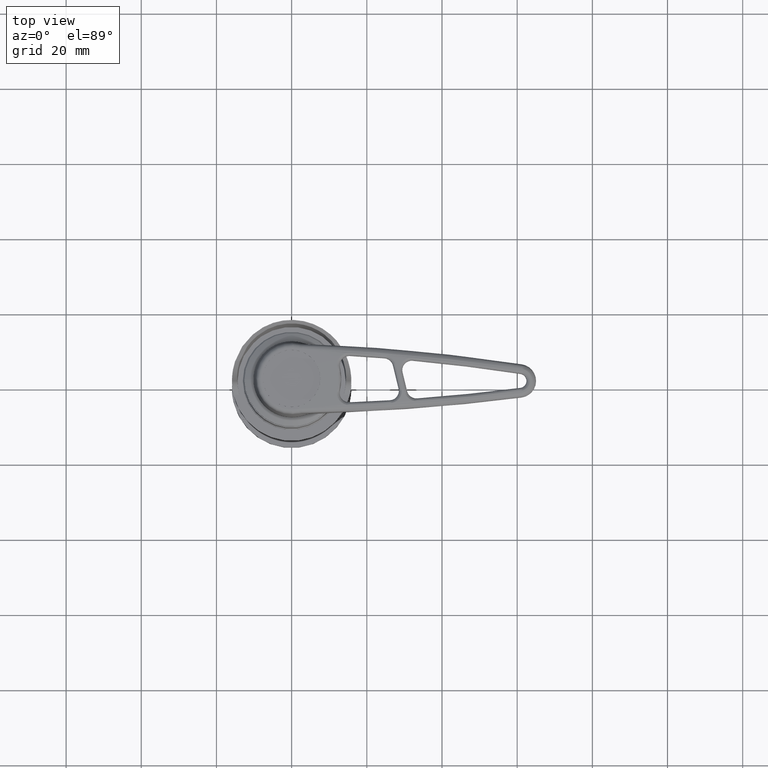
[diagram: clean part render]
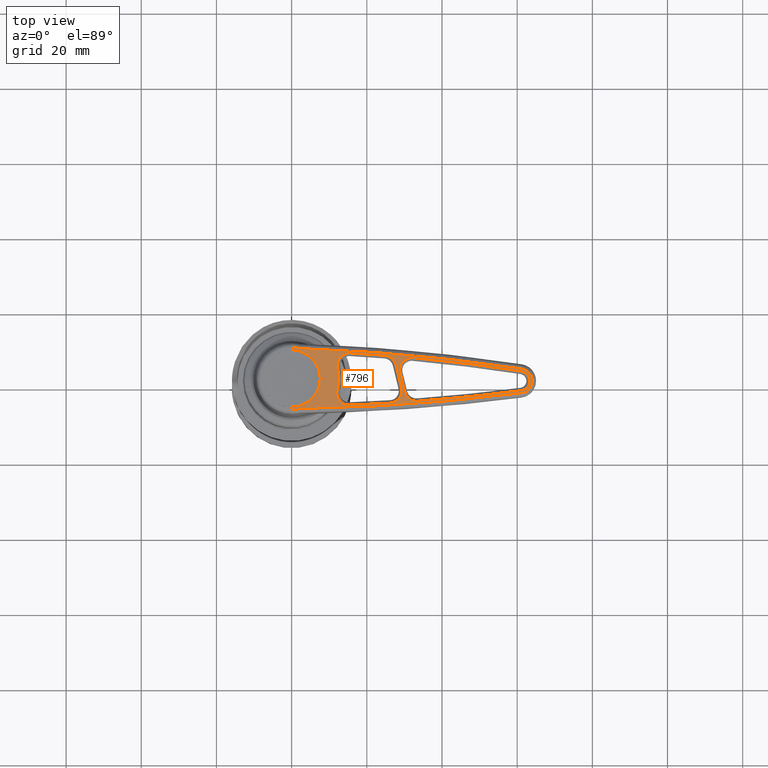
[diagram: same view with one face highlighted and labeled with its STEP entity id]
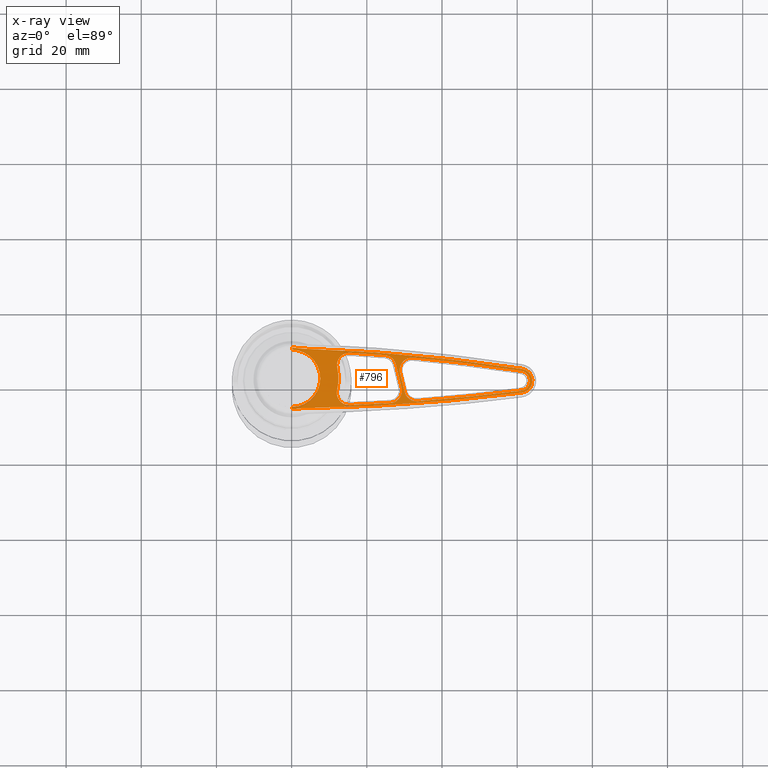
[diagram: x-ray of the same camera — body ghosted, the highlighted face saturated]
A machine part, top view. The second image highlights one B-rep face of the part: STEP entity #796.
The next image is the same camera in x-ray: the body ghosted, the highlighted face saturated — about 0% of this face is hidden behind the body in this view.
In plain terms, the highlighted cylindrical surface (partial cylindrical patch) has radius 309.995 mm, axis along (0.0085, 1, -0).
Its self-contained STEP definition (entity closure, byte-faithful):
#16 = CARTESIAN_POINT ( 'NONE',  ( -18.28515521259127400, -8.076133682068841000, 1.507140635750377600 ) ) ;
#20 = EDGE_CURVE ( 'NONE', #2311, #3320, #4143, .T. ) ;
#58 = CARTESIAN_POINT ( 'NONE',  ( -18.20095931724259900, 1.225874089185394800, 7.524768199164421700 ) ) ;
#83 = CARTESIAN_POINT ( 'NONE',  ( -16.61967341125467000, 5.853038840717557500, 32.29704541549643400 ) ) ;
#84 = CARTESIAN_POINT ( 'NONE',  ( -18.27897328382049100, 7.184163068733592000, 2.587907220544714900 ) ) ;
#132 = CARTESIAN_POINT ( 'NONE',  ( -16.88171978470617100, 4.902800976362597000, 29.67369445325931900 ) ) ;
#165 = CARTESIAN_POINT ( 'NONE',  ( -16.92378322428905000, 0.08652769979028701600, 29.23280366859213300 ) ) ;
#286 = CARTESIAN_POINT ( 'NONE',  ( -16.48485070446753700, -5.746429647507145700, 33.56597091489539500 ) ) ;
#301 = CARTESIAN_POINT ( 'NONE',  ( -11.83524093713531200, -2.234839864738626500, 63.09989055405958400 ) ) ;
#321 = CARTESIAN_POINT ( 'NONE',  ( -16.91048851891765300, -3.413898283259719300, 29.37067056616021400 ) ) ;
#326 = CARTESIAN_POINT ( 'NONE',  ( -15.60931675970215300, 5.050377341579849900, 41.99629708386260100 ) ) ;
#332 = CARTESIAN_POINT ( 'NONE',  ( -11.86852832243962100, 1.507692281910236500, 62.93901814930623600 ) ) ;
#335 = CARTESIAN_POINT ( 'NONE',  ( -11.70161997458381200, 1.303054342469933000, 63.74100581687158500 ) ) ;
#362 = CARTESIAN_POINT ( 'NONE',  ( -11.86907234923922300, -1.511412442427699600, 62.93638621559999500 ) ) ;
#368 = CARTESIAN_POINT ( 'NONE',  ( -18.04290528401431000, -5.365570865604512500, 12.50423286664262300 ) ) ;
#449 = CARTESIAN_POINT ( 'NONE',  ( -18.28800000000002500, 8.212120155783532400, 0.1790844486832411400 ) ) ;
#456 = CARTESIAN_POINT ( 'NONE',  ( -18.28799999999997200, -7.617895297274672300, 0.1790844486832307300 ) ) ;
#461 = CARTESIAN_POINT ( 'NONE',  ( -18.28703610212464500, 8.157105036513151200, 1.068106858965420100 ) ) ;
#508 = CARTESIAN_POINT ( 'NONE',  ( -18.23731035884253200, -4.971844670628140500, 5.795291106830780400 ) ) ;
#517 = CARTESIAN_POINT ( 'NONE',  ( -18.04292101978183600, 5.365331146673015400, 12.50384656829147900 ) ) ;
#583 = CARTESIAN_POINT ( 'NONE',  ( -16.96696804822989400, -0.1686345556389762000, 28.77190190693172100 ) ) ;
#591 = CARTESIAN_POINT ( 'NONE',  ( -16.56813341197537800, -5.744679115560906300, 32.79023061340215900 ) ) ;
#620 = CARTESIAN_POINT ( 'NONE',  ( -17.31219409829073900, 6.420675440920839500, 24.75627401406998000 ) ) ;
#622 = CARTESIAN_POINT ( 'NONE',  ( -16.84323153426714400, -3.258997604018125700, 30.07315491832459400 ) ) ;
#640 = CARTESIAN_POINT ( 'NONE',  ( -17.13336301150420500, 5.429466360082772200, 26.91003820065000000 ) ) ;
#661 = CARTESIAN_POINT ( 'NONE',  ( -18.28515521259127400, -8.076133682068841000, 1.507140635750377600 ) ) ;
#687 = CARTESIAN_POINT ( 'NONE',  ( -18.28101459789298400, -7.953909350043175200, 2.298502755616732300 ) ) ;
#691 = ORIENTED_EDGE ( 'NONE', *, *, #5489, .T. ) ;
#702 = CARTESIAN_POINT ( 'NONE',  ( -18.20756858910579000, 2.418323190711528800, 7.242682172051083900 ) ) ;
#728 = CARTESIAN_POINT ( 'NONE',  ( -18.28679340156616100, 7.545960884337418400, 1.167047313017961700 ) ) ;
#739 = CARTESIAN_POINT ( 'NONE',  ( -16.96277161634235500, 1.759774611556556900, 28.81250640412016800 ) ) ;
#754 = ORIENTED_EDGE ( 'NONE', *, *, #2763, .T. ) ;
#759 = CARTESIAN_POINT ( 'NONE',  ( -18.05740705325897700, -2.896386151223495600, 12.13367671611862700 ) ) ;
#766 = ORIENTED_EDGE ( 'NONE', *, *, #1120, .F. ) ;
#770 = CARTESIAN_POINT ( 'NONE',  ( -16.82225317086357200, 5.387142297016995800, 30.28963985881047800 ) ) ;
#777 = CARTESIAN_POINT ( 'NONE',  ( -12.24278141927073800, 2.640946999727879600, 61.10062222209249700 ) ) ;
#796 = ADVANCED_FACE ( 'NONE', ( #5006, #1557, #8254 ), #1353, .T. ) ;
#945 = EDGE_CURVE ( 'NONE', #6867, #6654, #7845, .T. ) ;
#950 = CARTESIAN_POINT ( 'NONE',  ( -14.14768577489456400, 3.975906749734569300, 51.59666329770608000 ) ) ;
#955 = CARTESIAN_POINT ( 'NONE',  ( -11.75963611506954400, -1.795870020088554000, 63.46347835581816800 ) ) ;
#973 = CARTESIAN_POINT ( 'NONE',  ( -16.92586363081843700, -4.114014605551374400, 29.20778954700795200 ) ) ;
#983 = CARTESIAN_POINT ( 'NONE',  ( -11.82001518953323000, 1.089958517052397100, 63.17319531975049100 ) ) ;
#985 = CARTESIAN_POINT ( 'NONE',  ( -11.76029038086507100, 1.800292812780029100, 63.46034035060821300 ) ) ;
#1011 = CARTESIAN_POINT ( 'NONE',  ( -11.93202447021671400, -1.879812124312816500, 62.63113032271103000 ) ) ;
#1018 = CARTESIAN_POINT ( 'NONE',  ( -18.05527783258965300, -4.668192781302654900, 12.18886519692534900 ) ) ;
#1081 = CARTESIAN_POINT ( 'NONE',  ( -17.18468284625282300, -6.312930147660388500, 26.31007959749248200 ) ) ;
#1108 = ORIENTED_EDGE ( 'NONE', *, *, #3354, .T. ) ;
#1120 = EDGE_CURVE ( 'NONE', #3387, #8310, #7240, .T. ) ;
#1157 = EDGE_CURVE ( 'NONE', #1171, #2199, #7087, .T. ) ;
#1166 = CARTESIAN_POINT ( 'NONE',  ( -18.22343372197704500, -3.972647688260947600, 6.507162632148974200 ) ) ;
#1171 = VERTEX_POINT ( 'NONE', #5715 ) ;
#1173 = CARTESIAN_POINT ( 'NONE',  ( -18.02406356514908800, 5.970324735193215400, 12.96951519881160800 ) ) ;
#1248 = CARTESIAN_POINT ( 'NONE',  ( -16.64607348243209000, -5.523671426500265500, 32.04307449585411400 ) ) ;
#1287 = CARTESIAN_POINT ( 'NONE',  ( -17.10455076891845400, 5.031688879649185400, 27.24078068697626200 ) ) ;
#1311 = CARTESIAN_POINT ( 'NONE',  ( 291.7072782777348700, -12.69999999999991800, 0.1790844486832534900 ) ) ;
#1348 = B_SPLINE_CURVE_WITH_KNOTS ( 'NONE', 3,
 ( #3219, #2587, #1962, #6513 ),
 .UNSPECIFIED., .F., .F.,
 ( 4, 4 ),
 ( 8.673617379884035500E-019, 0.001200019965173039000 ),
 .UNSPECIFIED. ) ;
#1353 = CYLINDRICAL_SURFACE ( 'NONE', #3998, 309.9952782777334600 ) ;
#1357 = CARTESIAN_POINT ( 'NONE',  ( -18.22076366366982500, 3.768856793472471700, 6.640780979361458900 ) ) ;
#1370 = EDGE_CURVE ( 'NONE', #4694, #1396, #1405, .T. ) ;
#1385 = CARTESIAN_POINT ( 'NONE',  ( -18.28800000000002500, 7.617895297274646500, 0.1790844486832302000 ) ) ;
#1396 = VERTEX_POINT ( 'NONE', #2330 ) ;
#1405 = B_SPLINE_CURVE_WITH_KNOTS ( 'NONE', 3,
 ( #3477, #2861, #6774, #3502, #8071, #4167, #301, #4829, #955, #5480, #1602, #6143, #2245, #6804, #2893, #7453, #3531, #8094, #4197, #335, #4854, #985, #5508, #1630, #6164, #2273, #6841, #2914, #7479, #3562 ),
 .UNSPECIFIED., .F., .F.,
 ( 4, 2, 2, 2, 2, 2, 2, 2, 2, 2, 2, 2, 2, 2, 4 ),
 ( 1.462347196467345600E-017, 0.001154780273848703300, 0.001732170410773038300, 0.002309560547697374000, 0.002886950684621709300, 0.003464340821546044900, 0.004041730958470380600, 0.004619121095394716800, 0.005196511232319052000, 0.005773901369243386400, 0.006351291506167722500, 0.006928681643092056900, 0.007506071780016392200, 0.008083461916940726600, 0.009238242190789431800 ),
 .UNSPECIFIED. ) ;
#1408 = CARTESIAN_POINT ( 'NONE',  ( -17.72977090951373900, -6.784171192709018200, 19.12128122806675600 ) ) ;
#1416 = CARTESIAN_POINT ( 'NONE',  ( -18.27775077696330900, -7.944185718990716800, 2.699861401964886100 ) ) ;
#1428 = B_SPLINE_CURVE_WITH_KNOTS ( 'NONE', 3,
 ( #4248, #5559, #1684, #6224, #2325, #6894 ),
 .UNSPECIFIED., .F., .F.,
 ( 4, 2, 4 ),
 ( 7.204847710556567800E-018, 0.02954053794392106100, 0.05908107588784213000 ),
 .UNSPECIFIED. ) ;
#1430 = CARTESIAN_POINT ( 'NONE',  ( -16.75174931514873900, 5.714533290631339700, 31.00374258021690500 ) ) ;
#1557 = FACE_BOUND ( 'NONE', #2966, .T. ) ;
#1584 = B_SPLINE_CURVE_WITH_KNOTS ( 'NONE', 3,
 ( #2614, #6519, #7820, #3916, #58, #4564, #702, #5234, #1357, #5874, #1991, #6549, #2644, #7204, #3287, #7851, #3943, #84, #4594, #728, #5256, #1385 ),
 .UNSPECIFIED., .F., .F.,
 ( 4, 2, 2, 2, 2, 2, 2, 2, 2, 2, 4 ),
 ( 0.01173596774007686100, 0.01246908148557357100, 0.01320219523107028100, 0.01466842272206370100, 0.01613465021305712100, 0.01760087770405054100, 0.01833399144954724800, 0.01906710519504396100, 0.02053333268603737400, 0.02199956017703079400, 0.02346578766802421100 ),
 .UNSPECIFIED. ) ;
#1602 = CARTESIAN_POINT ( 'NONE',  ( -11.70120149634742300, -1.298471130067160100, 63.74300272144732600 ) ) ;
#1616 = CARTESIAN_POINT ( 'NONE',  ( -16.95522940841258100, -4.767095845684306900, 28.89404464652626800 ) ) ;
#1627 = CARTESIAN_POINT ( 'NONE',  ( -11.78746162182742000, 0.6336100363493550900, 63.32982684702158600 ) ) ;
#1629 = VERTEX_POINT ( 'NONE', #8245 ) ;
#1630 = CARTESIAN_POINT ( 'NONE',  ( -11.83601927782849800, 2.238761673563200500, 63.09613825749949000 ) ) ;
#1653 = CARTESIAN_POINT ( 'NONE',  ( -12.00654904943973700, -2.185882289108201300, 62.26772729646159400 ) ) ;
#1659 = CARTESIAN_POINT ( 'NONE',  ( -18.06091308508516100, -3.916353478161233700, 12.04248085943133600 ) ) ;
#1684 = CARTESIAN_POINT ( 'NONE',  ( -15.61632684208794700, 5.572573470396512200, 41.95934634179304400 ) ) ;
#1699 = CARTESIAN_POINT ( 'NONE',  ( -18.19720890475398200, -7.704233997828117400, 12.60425796685177600 ) ) ;
#1719 = EDGE_LOOP ( 'NONE', ( #7466, #2317, #2960, #7795, #7624, #1770 ) ) ;
#1763 = CARTESIAN_POINT ( 'NONE',  ( -18.28799999999997200, -12.69999999999993200, 0.1790844486832370300 ) ) ;
#1770 = ORIENTED_EDGE ( 'NONE', *, *, #5965, .T. ) ;
#1782 = CARTESIAN_POINT ( 'NONE',  ( -18.28681105829502600, -7.546811345308820600, 1.161593195315913300 ) ) ;
#1799 = CARTESIAN_POINT ( 'NONE',  ( -18.21597436829112500, -3.322070853133507000, 6.862130706311045700 ) ) ;
#1805 = CARTESIAN_POINT ( 'NONE',  ( -17.99895600115706900, 6.454779443805391800, 13.56423920814075100 ) ) ;
#1887 = CARTESIAN_POINT ( 'NONE',  ( -16.69919768311421000, -5.260175034794362300, 31.52463888513391100 ) ) ;
#1900 = CARTESIAN_POINT ( 'NONE',  ( -17.28449458418144100, 6.397060553073992600, 25.10455180280387200 ) ) ;
#1930 = CARTESIAN_POINT ( 'NONE',  ( -17.08105429813087300, 4.582982909215931300, 27.50751171973044500 ) ) ;
#1960 = VERTEX_POINT ( 'NONE', #7757 ) ;
#1962 = CARTESIAN_POINT ( 'NONE',  ( -18.28346555326175600, 8.003394692338492400, 1.901537809915550000 ) ) ;
#1991 = CARTESIAN_POINT ( 'NONE',  ( -18.23726905505470300, 4.969317150119543700, 5.797678225820030600 ) ) ;
#2037 = CARTESIAN_POINT ( 'NONE',  ( -16.97176566857033100, 2.275246567169329800, 28.71538391239667100 ) ) ;
#2063 = CARTESIAN_POINT ( 'NONE',  ( -16.67399690112728500, 5.865213718706835200, 31.77227303675286100 ) ) ;
#2081 = B_SPLINE_CURVE_WITH_KNOTS ( 'NONE', 3,
 ( #16, #6504, #687, #5224 ),
 .UNSPECIFIED., .F., .F.,
 ( 4, 4 ),
 ( 0.0000000000000000000, 0.001200019965161729900 ),
 .UNSPECIFIED. ) ;
#2183 = CARTESIAN_POINT ( 'NONE',  ( -14.06435458857280300, -3.917508132853276100, 52.01241969491522400 ) ) ;
#2199 = VERTEX_POINT ( 'NONE', #5021 ) ;
#2221 = ORIENTED_EDGE ( 'NONE', *, *, #4113, .F. ) ;
#2238 = CARTESIAN_POINT ( 'NONE',  ( -12.24278141927073800, 2.640946999727879600, 61.10062222209249700 ) ) ;
#2245 = CARTESIAN_POINT ( 'NONE',  ( -11.66195215498332000, -0.7548945513325497900, 63.93003585791666400 ) ) ;
#2258 = CARTESIAN_POINT ( 'NONE',  ( -16.99646153479975700, -5.334706195078757300, 28.44755117529717100 ) ) ;
#2270 = CARTESIAN_POINT ( 'NONE',  ( -11.77253573334553800, 0.1589897697783475300, 63.40150960227428100 ) ) ;
#2273 = CARTESIAN_POINT ( 'NONE',  ( -11.92552313364990500, 2.602844002231119400, 62.66281926390571000 ) ) ;
#2277 = CARTESIAN_POINT ( 'NONE',  ( -17.95688293153312600, -6.866821713674514900, 14.50537608728367400 ) ) ;
#2296 = CARTESIAN_POINT ( 'NONE',  ( -12.11911720982825900, -2.498821830866415200, 61.71505709053320700 ) ) ;
#2300 = CARTESIAN_POINT ( 'NONE',  ( -18.05972910118566000, -3.147217815018728400, 12.07350833653204700 ) ) ;
#2311 = VERTEX_POINT ( 'NONE', #83 ) ;
#2317 = ORIENTED_EDGE ( 'NONE', *, *, #6426, .T. ) ;
#2325 = CARTESIAN_POINT ( 'NONE',  ( -18.19720890475348800, 7.704233997827575600, 12.60425796686212900 ) ) ;
#2330 = CARTESIAN_POINT ( 'NONE',  ( -12.20838323817621800, 3.143984523485554100, 61.27199107323612300 ) ) ;
#2413 = ORIENTED_EDGE ( 'NONE', *, *, #945, .F. ) ;
#2419 = CARTESIAN_POINT ( 'NONE',  ( -18.28204532058655500, -7.324820452176492600, 2.114726941163384200 ) ) ;
#2421 = ORIENTED_EDGE ( 'NONE', *, *, #5164, .T. ) ;
#2424 = CARTESIAN_POINT ( 'NONE',  ( -18.05972905563968200, 3.147212895056619600, 12.07350951671072500 ) ) ;
#2444 = CARTESIAN_POINT ( 'NONE',  ( -18.20758545830873800, -2.420333787263962800, 7.241932094562076600 ) ) ;
#2447 = B_SPLINE_CURVE_WITH_KNOTS ( 'NONE', 3,
 ( #3535, #7457, #6167, #2277, #6845, #2918, #7483, #3567, #8130, #4223, #368, #4895, #1018, #5538, #1659, #6199, #2300, #6875 ),
 .UNSPECIFIED., .F., .F.,
 ( 4, 2, 2, 2, 2, 2, 2, 2, 4 ),
 ( 0.0000000000000000000, 0.0007628738370518085800, 0.001525747674103617200, 0.002288621511155425500, 0.003051495348207234300, 0.003814369185259043100, 0.004577243022310851000, 0.005340116859362659800, 0.006102990696414468600 ),
 .UNSPECIFIED. ) ;
#2452 = CARTESIAN_POINT ( 'NONE',  ( -17.96831007288730200, 6.790676773092707600, 14.25593258721228000 ) ) ;
#2530 = CARTESIAN_POINT ( 'NONE',  ( -16.74620200027478800, -4.908405185037016900, 31.05855495707276500 ) ) ;
#2555 = B_SPLINE_CURVE_WITH_KNOTS ( 'NONE', 3,
 ( #456, #5018, #1782, #6324, #2419, #6992, #3059, #7633, #3713, #8275, #4368, #508, #5043, #1166, #5679, #1799, #6347, #2444, #7013, #3088, #7660, #3746 ),
 .UNSPECIFIED., .F., .F.,
 ( 4, 2, 2, 2, 2, 2, 2, 2, 2, 2, 4 ),
 ( 4.182618160448392700E-017, 0.001466995967509644900, 0.002200493951264446500, 0.002933991935019248600, 0.004400987902528850600, 0.005867983870038453000, 0.007334979837548055400, 0.008068477821302858300, 0.008801975805057659500, 0.01026897177256726000, 0.01173596774007686100 ),
 .UNSPECIFIED. ) ;
#2563 = VERTEX_POINT ( 'NONE', #3788 ) ;
#2582 = CARTESIAN_POINT ( 'NONE',  ( -17.06395183221973600, 4.098641815289201200, 27.70001910658951200 ) ) ;
#2587 = CARTESIAN_POINT ( 'NONE',  ( -18.28101459789292000, 7.953909350041454800, 2.298502755625279700 ) ) ;
#2614 = CARTESIAN_POINT ( 'NONE',  ( -18.19868379826076000, 7.402340477534241900E-016, 7.619999999999999200 ) ) ;
#2644 = CARTESIAN_POINT ( 'NONE',  ( -18.24900889780440500, 5.667680015221137100, 5.099242206465088000 ) ) ;
#2665 = CARTESIAN_POINT ( 'NONE',  ( -17.48848063669193600, -6.567476398876164200, 22.71891535979420600 ) ) ;
#2666 = CARTESIAN_POINT ( 'NONE',  ( -17.90831636002637600, -6.962749416591106100, 15.51714532989485700 ) ) ;
#2667 = ORIENTED_EDGE ( 'NONE', *, *, #4331, .T. ) ;
#2680 = CARTESIAN_POINT ( 'NONE',  ( -16.96939004743170500, 3.063293954198493800, 28.74113247951644800 ) ) ;
#2697 = CARTESIAN_POINT ( 'NONE',  ( -18.04510092396457900, -0.9629723678981418900, 12.44853505418521400 ) ) ;
#2712 = CARTESIAN_POINT ( 'NONE',  ( -16.61967341125467000, 5.853038840717557500, 32.29704541549643400 ) ) ;
#2763 = EDGE_CURVE ( 'NONE', #1629, #4958, #5718, .T. ) ;
#2817 = EDGE_CURVE ( 'NONE', #2563, #6654, #8121, .T. ) ;
#2861 = CARTESIAN_POINT ( 'NONE',  ( -12.13296621912366300, -3.091372955852842900, 61.64716414162159500 ) ) ;
#2893 = CARTESIAN_POINT ( 'NONE',  ( -11.64394607824464600, -0.1894275247604181600, 64.01565105618946900 ) ) ;
#2903 = CARTESIAN_POINT ( 'NONE',  ( -17.04680568187580300, -5.789737341463443000, 27.89249270093732800 ) ) ;
#2912 = CARTESIAN_POINT ( 'NONE',  ( -11.77569903140100200, -0.3249098251664114300, 63.38633019193027000 ) ) ;
#2914 = CARTESIAN_POINT ( 'NONE',  ( -12.06050107909231700, 2.975005474134238400, 62.00404128900351700 ) ) ;
#2918 = CARTESIAN_POINT ( 'NONE',  ( -17.98910888851573400, -6.586949695495524000, 13.79065035826972100 ) ) ;
#2941 = CARTESIAN_POINT ( 'NONE',  ( -12.24278141927073800, -2.640946999727889800, 61.10062222209254700 ) ) ;
#2960 = ORIENTED_EDGE ( 'NONE', *, *, #20, .T. ) ;
#2966 = EDGE_LOOP ( 'NONE', ( #7764, #6890, #6650, #2421, #5315, #754, #2667, #691 ) ) ;
#2986 = CARTESIAN_POINT ( 'NONE',  ( -17.64367136291120600, -7.178057265416965600, 22.43618453229931100 ) ) ;
#2996 = EDGE_CURVE ( 'NONE', #7601, #4694, #5111, .T. ) ;
#3059 = CARTESIAN_POINT ( 'NONE',  ( -18.27686494279066000, -7.084768227658416100, 2.816218618488950800 ) ) ;
#3067 = CARTESIAN_POINT ( 'NONE',  ( -18.05740705325897700, 2.896386151223433000, 12.13367671611864500 ) ) ;
#3088 = CARTESIAN_POINT ( 'NONE',  ( -18.19981528330639600, -0.9770467873557091600, 7.573337725318032700 ) ) ;
#3091 = CARTESIAN_POINT ( 'NONE',  ( -17.93354767446427500, 6.957993059746418600, 15.00118579725622100 ) ) ;
#3134 = EDGE_CURVE ( 'NONE', #2199, #4403, #5978, .T. ) ;
#3175 = VERTEX_POINT ( 'NONE', #5759 ) ;
#3176 = CARTESIAN_POINT ( 'NONE',  ( -16.78567310867095600, -4.480767743240766000, 30.66160089194536900 ) ) ;
#3190 = CARTESIAN_POINT ( 'NONE',  ( -17.21710077254422400, 6.126808972511130800, 25.92450801753187100 ) ) ;
#3213 = VERTEX_POINT ( 'NONE', #4560 ) ;
#3219 = CARTESIAN_POINT ( 'NONE',  ( -18.27775077696319900, 7.944185718990325100, 2.699861401977336200 ) ) ;
#3287 = CARTESIAN_POINT ( 'NONE',  ( -18.25755037872450600, 6.133203307968584800, 4.528569534402914000 ) ) ;
#3302 = EDGE_CURVE ( 'NONE', #3320, #1960, #5346, .T. ) ;
#3320 = VERTEX_POINT ( 'NONE', #3591 ) ;
#3328 = CARTESIAN_POINT ( 'NONE',  ( -16.94989381210584900, 3.819483514018126700, 28.95123974130093100 ) ) ;
#3346 = CARTESIAN_POINT ( 'NONE',  ( -18.04402858499165100, 0.9796790828707293600, 12.47544374452517800 ) ) ;
#3354 = EDGE_CURVE ( 'NONE', #1396, #6068, #1428, .T. ) ;
#3364 = CARTESIAN_POINT ( 'NONE',  ( -16.84323153426714400, -3.258997604018125700, 30.07315491832459400 ) ) ;
#3377 = DIRECTION ( 'NONE',  ( -2.619264724366652800E-032, 1.000000000000000000, -9.714451465470162900E-017 ) ) ;
#3387 = VERTEX_POINT ( 'NONE', #6546 ) ;
#3420 =( BOUNDED_CURVE ( )  B_SPLINE_CURVE ( 3, ( #3364, #7283, #165, #4674 ),
 .UNSPECIFIED., .F., .F. ) 
 B_SPLINE_CURVE_WITH_KNOTS ( ( 4, 4 ),
 ( 4.615804932503443100, 4.619889847503088700 ),
 .UNSPECIFIED. ) 
 CURVE ( )  GEOMETRIC_REPRESENTATION_ITEM ( )  RATIONAL_B_SPLINE_CURVE ( ( 1.000000000000000000, 0.9999986094562706200, 0.9999986094562706200, 1.000000000000000000 ) ) 
 REPRESENTATION_ITEM ( '' )  );
#3475 = VERTEX_POINT ( 'NONE', #4023 ) ;
#3477 = CARTESIAN_POINT ( 'NONE',  ( -12.20838323817624600, -3.143984523485642100, 61.27199107323611600 ) ) ;
#3502 = CARTESIAN_POINT ( 'NONE',  ( -11.95760971213014700, -2.705303268219045400, 62.50674112131837700 ) ) ;
#3527 = CARTESIAN_POINT ( 'NONE',  ( -12.00508740082107200, 2.197375778710232400, 62.27539270759653800 ) ) ;
#3531 = CARTESIAN_POINT ( 'NONE',  ( -11.64776421228636700, 0.3871527277424905400, 63.99751440068994400 ) ) ;
#3535 = CARTESIAN_POINT ( 'NONE',  ( -17.90831636002637600, -6.962749416591106100, 15.51714532989485700 ) ) ;
#3550 = CARTESIAN_POINT ( 'NONE',  ( -17.14382296129694400, -6.278694445927194500, 26.79308033755092200 ) ) ;
#3558 = CARTESIAN_POINT ( 'NONE',  ( -11.79668904411347600, -0.7932499167377431400, 63.28548476169848400 ) ) ;
#3562 = CARTESIAN_POINT ( 'NONE',  ( -12.20838323817621800, 3.143984523485554100, 61.27199107323612300 ) ) ;
#3567 = CARTESIAN_POINT ( 'NONE',  ( -18.01624850471250400, -6.149751923549971800, 13.15798498276841100 ) ) ;
#3591 = CARTESIAN_POINT ( 'NONE',  ( -12.24278141927073800, 2.640946999727879600, 61.10062222209249700 ) ) ;
#3635 = CARTESIAN_POINT ( 'NONE',  ( -14.14247369902130700, -4.493222830259695900, 51.65057323087243200 ) ) ;
#3713 = CARTESIAN_POINT ( 'NONE',  ( -18.26567876584247300, -6.552180087329098500, 3.920936793727784600 ) ) ;
#3714 = CARTESIAN_POINT ( 'NONE',  ( -18.05740705325897700, -2.896386151223495600, 12.13367671611862700 ) ) ;
#3718 = CARTESIAN_POINT ( 'NONE',  ( -18.28800000000002500, 8.212120155783532400, 0.1790844486832411400 ) ) ;
#3722 = CARTESIAN_POINT ( 'NONE',  ( -18.05980285426938500, 4.168326420321129400, 12.07157681762639700 ) ) ;
#3746 = CARTESIAN_POINT ( 'NONE',  ( -18.19868379826076000, 7.402340477534241900E-016, 7.619999999999999200 ) ) ;
#3755 = ORIENTED_EDGE ( 'NONE', *, *, #6373, .T. ) ;
#3756 = CARTESIAN_POINT ( 'NONE',  ( -17.90831636002632300, 6.962749416590961400, 15.51714532989498700 ) ) ;
#3785 = ORIENTED_EDGE ( 'NONE', *, *, #5273, .F. ) ;
#3788 = CARTESIAN_POINT ( 'NONE',  ( -18.28515521259122100, 8.076133682068592300, 1.507140635751466100 ) ) ;
#3802 = CARTESIAN_POINT ( 'NONE',  ( -16.48485070446753700, -5.746429647507145700, 33.56597091489539500 ) ) ;
#3821 = CARTESIAN_POINT ( 'NONE',  ( -17.75552272964251100, 6.809927739779257500, 18.60145247240309600 ) ) ;
#3823 = CARTESIAN_POINT ( 'NONE',  ( -16.81670684789780200, -3.989374998807955200, 30.34578123095474900 ) ) ;
#3848 = CARTESIAN_POINT ( 'NONE',  ( -17.17906594104371700, 5.873166498729472300, 26.37681281334266000 ) ) ;
#3872 = CARTESIAN_POINT ( 'NONE',  ( -18.28799999999997200, -8.212120155783532400, 0.1790844486832330100 ) ) ;
#3913 = VERTEX_POINT ( 'NONE', #286 ) ;
#3916 = CARTESIAN_POINT ( 'NONE',  ( -18.20010094438472900, 0.9796352803505571400, 7.560779522031782400 ) ) ;
#3943 = CARTESIAN_POINT ( 'NONE',  ( -18.27058994325402000, 6.788939028242741500, 3.495678711081095600 ) ) ;
#3985 = CARTESIAN_POINT ( 'NONE',  ( -16.91404363238189000, 4.504471582654564300, 29.33352505308124200 ) ) ;
#3998 = AXIS2_PLACEMENT_3D ( 'NONE', #1311, #4516, #5189 ) ;
#4003 = CARTESIAN_POINT ( 'NONE',  ( -18.05740705325897700, 2.896386151223433000, 12.13367671611864500 ) ) ;
#4023 = CARTESIAN_POINT ( 'NONE',  ( -17.06014442556386300, 3.928845406807382400, 27.74266969539404900 ) ) ;
#4113 = EDGE_CURVE ( 'NONE', #8310, #3175, #2555, .T. ) ;
#4130 = CARTESIAN_POINT ( 'NONE',  ( -16.48485070446753700, -5.746429647507145700, 33.56597091489539500 ) ) ;
#4143 = B_SPLINE_CURVE_WITH_KNOTS ( 'NONE', 3,
 ( #6131, #326, #950, #2238 ),
 .UNSPECIFIED., .F., .F.,
 ( 4, 4 ),
 ( 0.0000000000000000000, 0.02931076174987480200 ),
 .UNSPECIFIED. ) ;
#4167 = CARTESIAN_POINT ( 'NONE',  ( -11.86356053793128000, -2.364864113875788700, 62.96317039694350400 ) ) ;
#4184 = CARTESIAN_POINT ( 'NONE',  ( -16.90857085328996600, -3.169547790921920500, 29.39090161967625600 ) ) ;
#4195 = CARTESIAN_POINT ( 'NONE',  ( -11.88825501680270400, 1.638196608354518300, 62.84355711843137000 ) ) ;
#4197 = CARTESIAN_POINT ( 'NONE',  ( -11.67308289704592500, 0.9450885176596143200, 63.87707374317500400 ) ) ;
#4218 = CARTESIAN_POINT ( 'NONE',  ( -11.83507836028294800, -1.239249396877900400, 63.10060152904112100 ) ) ;
#4223 = CARTESIAN_POINT ( 'NONE',  ( -18.03722946190455500, -5.583125093656194700, 12.64661277230686000 ) ) ;
#4248 = CARTESIAN_POINT ( 'NONE',  ( -12.20838323817621800, 3.143984523485554100, 61.27199107323612300 ) ) ;
#4331 = EDGE_CURVE ( 'NONE', #4958, #6099, #4963, .T. ) ;
#4368 = CARTESIAN_POINT ( 'NONE',  ( -18.24896112282494800, -5.673341763759319500, 5.110560798322394400 ) ) ;
#4372 = CARTESIAN_POINT ( 'NONE',  ( -18.05196196625559700, 4.905341649805875700, 12.27448893228945800 ) ) ;
#4393 = EDGE_CURVE ( 'NONE', #8016, #3213, #3420, .T. ) ;
#4403 = VERTEX_POINT ( 'NONE', #5361 ) ;
#4432 = ORIENTED_EDGE ( 'NONE', *, *, #6342, .T. ) ;
#4435 = CARTESIAN_POINT ( 'NONE',  ( -17.01419958416546800, 1.879873557282305500, 28.25734404338178200 ) ) ;
#4451 = EDGE_CURVE ( 'NONE', #1960, #3913, #7359, .T. ) ;
#4474 = CARTESIAN_POINT ( 'NONE',  ( -17.55676691814170500, 6.629183059082540000, 21.68115578109263100 ) ) ;
#4479 = CARTESIAN_POINT ( 'NONE',  ( -16.83858701356775000, -3.449844713161830600, 30.12109316183266500 ) ) ;
#4498 = CARTESIAN_POINT ( 'NONE',  ( -17.14422229761093100, 5.551981747311781800, 26.78436719791947600 ) ) ;
#4516 = DIRECTION ( 'NONE',  ( -2.619264724366652300E-032, 1.000000000000000000, -9.714451465470162900E-017 ) ) ;
#4519 = CARTESIAN_POINT ( 'NONE',  ( -18.28703610212469900, -8.157105036513298700, 1.068106858964687600 ) ) ;
#4560 = CARTESIAN_POINT ( 'NONE',  ( -16.96277161634235500, 1.759774611556556900, 28.81250640412016800 ) ) ;
#4561 = ORIENTED_EDGE ( 'NONE', *, *, #7946, .T. ) ;
#4564 = CARTESIAN_POINT ( 'NONE',  ( -18.20430549200205300, 1.949990329032976300, 7.382679232598896100 ) ) ;
#4594 = CARTESIAN_POINT ( 'NONE',  ( -18.28227895939397400, 7.334889795309552000, 2.122007726054871800 ) ) ;
#4608 = CARTESIAN_POINT ( 'NONE',  ( -16.96874809986326200, 2.016264609424163600, 28.74807954415695800 ) ) ;
#4632 = CARTESIAN_POINT ( 'NONE',  ( -16.86306929655823300, 5.082189850906510200, 29.86844147907359900 ) ) ;
#4674 = CARTESIAN_POINT ( 'NONE',  ( -16.96277161634235500, 1.759774611556556900, 28.81250640412016800 ) ) ;
#4688 = CARTESIAN_POINT ( 'NONE',  ( -18.28799999999997200, -12.69999999999993200, 0.1790844486832370300 ) ) ;
#4694 = VERTEX_POINT ( 'NONE', #6637 ) ;
#4829 = CARTESIAN_POINT ( 'NONE',  ( -11.78337759356891100, -1.951201745592725500, 63.34957289911444200 ) ) ;
#4843 = CARTESIAN_POINT ( 'NONE',  ( -16.91916306036260000, -3.885114944464848700, 29.27881622732606500 ) ) ;
#4853 = CARTESIAN_POINT ( 'NONE',  ( -11.83442173737794300, 1.233334173301615900, 63.10376945376215500 ) ) ;
#4854 = CARTESIAN_POINT ( 'NONE',  ( -11.71935578864574100, 1.476272420412382300, 63.65632694734365100 ) ) ;
#4883 = ORIENTED_EDGE ( 'NONE', *, *, #2996, .T. ) ;
#4888 = CARTESIAN_POINT ( 'NONE',  ( -11.88845642737396200, -1.639584873511313700, 62.84258320177749400 ) ) ;
#4895 = CARTESIAN_POINT ( 'NONE',  ( -18.05186930902451100, -4.910610052563819200, 12.27685227528075600 ) ) ;
#4958 = VERTEX_POINT ( 'NONE', #1081 ) ;
#4963 = B_SPLINE_CURVE_WITH_KNOTS ( 'NONE', 3,
 ( #7226, #2665, #1408, #5932 ),
 .UNSPECIFIED., .F., .F.,
 ( 4, 4 ),
 ( 0.0000000000000000000, 0.01083666649155601600 ),
 .UNSPECIFIED. ) ;
#4994 = CARTESIAN_POINT ( 'NONE',  ( -18.28515521259122100, 8.076133682068592300, 1.507140635751466100 ) ) ;
#5006 = FACE_BOUND ( 'NONE', #1719, .T. ) ;
#5018 = CARTESIAN_POINT ( 'NONE',  ( -18.28799999999997500, -7.606237400556767400, 0.6749881256164469400 ) ) ;
#5021 = CARTESIAN_POINT ( 'NONE',  ( -17.90831636002632300, 6.962749416590961400, 15.51714532989498700 ) ) ;
#5043 = CARTESIAN_POINT ( 'NONE',  ( -18.23153235848275200, -4.590697271484279100, 6.101858673118427700 ) ) ;
#5050 = CARTESIAN_POINT ( 'NONE',  ( -18.03737143485991000, 5.578168669874249200, 12.64308111866148300 ) ) ;
#5111 = B_SPLINE_CURVE_WITH_KNOTS ( 'NONE', 3,
 ( #6235, #1699, #2986, #7552, #3635, #8191 ),
 .UNSPECIFIED., .F., .F.,
 ( 4, 2, 4 ),
 ( 0.0000000000000000000, 0.02954053794392725100, 0.05908107588785448800 ),
 .UNSPECIFIED. ) ;
#5117 = B_SPLINE_CURVE_WITH_KNOTS ( 'NONE', 3,
 ( #3872, #7785, #4519, #661 ),
 .UNSPECIFIED., .F., .F.,
 ( 4, 4 ),
 ( 1.084202172485504400E-019, 0.001335003239642541000 ),
 .UNSPECIFIED. ) ;
#5121 = CARTESIAN_POINT ( 'NONE',  ( -16.91845011302461900, -2.216666125729505100, 29.28634006929085100 ) ) ;
#5133 = CARTESIAN_POINT ( 'NONE',  ( -16.62727027598494400, -5.590806067322752400, 32.22459366137544400 ) ) ;
#5164 = EDGE_CURVE ( 'NONE', #4403, #3475, #7616, .T. ) ;
#5166 = CARTESIAN_POINT ( 'NONE',  ( -17.11358092952691100, 5.169798349684169700, 27.13761777167446400 ) ) ;
#5189 = DIRECTION ( 'NONE',  ( 0.0000000000000000000, 9.513144605120254400E-017, 1.000000000000000000 ) ) ;
#5224 = CARTESIAN_POINT ( 'NONE',  ( -18.27775077696330900, -7.944185718990716800, 2.699861401964886100 ) ) ;
#5234 = CARTESIAN_POINT ( 'NONE',  ( -18.21577191223252300, 3.326468815790686800, 6.873087902657141000 ) ) ;
#5256 = CARTESIAN_POINT ( 'NONE',  ( -18.28799999999997500, 7.606243508393366600, 0.6747283104267547400 ) ) ;
#5273 = EDGE_CURVE ( 'NONE', #3175, #6867, #1584, .T. ) ;
#5299 = CARTESIAN_POINT ( 'NONE',  ( -16.79955445483961200, 5.516399546324446800, 30.52155319775779300 ) ) ;
#5315 = ORIENTED_EDGE ( 'NONE', *, *, #6320, .T. ) ;
#5346 = B_SPLINE_CURVE_WITH_KNOTS ( 'NONE', 3,
 ( #777, #8069, #7450, #3527, #8089, #4195, #332, #4853, #983, #5506, #1627, #6161, #2270, #6840, #2912, #7477, #3558, #8124, #4218, #362, #4888, #1011, #5531, #1653, #6192, #2296, #6866, #2941 ),
 .UNSPECIFIED., .F., .F.,
 ( 4, 2, 2, 2, 2, 2, 2, 2, 2, 2, 2, 2, 2, 4 ),
 ( 0.0000000000000000000, 0.0009691818436877373500, 0.001938363687375474700, 0.002422954609219329200, 0.002907545531063183500, 0.003392136452907037900, 0.003876727374750892600, 0.004361318296594746500, 0.004845909218438601200, 0.005330500140282455100, 0.005815091062126308100, 0.006299681983970162800, 0.006784272905814033200, 0.007753454749501790400 ),
 .UNSPECIFIED. ) ;
#5361 = CARTESIAN_POINT ( 'NONE',  ( -17.31219409829073900, 6.420675440920839500, 24.75627401406998000 ) ) ;
#5480 = CARTESIAN_POINT ( 'NONE',  ( -11.71856227039477700, -1.469208104800026300, 63.66012044325489000 ) ) ;
#5489 = EDGE_CURVE ( 'NONE', #6099, #5910, #2447, .T. ) ;
#5496 = CARTESIAN_POINT ( 'NONE',  ( -16.94400865393340200, -4.558047365895067300, 29.01422064492290100 ) ) ;
#5506 = CARTESIAN_POINT ( 'NONE',  ( -11.79654295575356700, 0.7908275903176341700, 63.28618690690182500 ) ) ;
#5508 = CARTESIAN_POINT ( 'NONE',  ( -11.78362064104038300, 1.952859390008551600, 63.34840789258676400 ) ) ;
#5531 = CARTESIAN_POINT ( 'NONE',  ( -11.95589628995181800, -1.989842349316465400, 62.51498816295096400 ) ) ;
#5538 = CARTESIAN_POINT ( 'NONE',  ( -18.05980485064685900, -4.168983876923476800, 12.07152792162157700 ) ) ;
#5559 = CARTESIAN_POINT ( 'NONE',  ( -14.14247369902084200, 4.493222830259461500, 51.65057323087451400 ) ) ;
#5679 = CARTESIAN_POINT ( 'NONE',  ( -18.22082184029669700, -3.758029449517864300, 6.633415955621399200 ) ) ;
#5690 = CARTESIAN_POINT ( 'NONE',  ( -18.01625294894136100, 6.149336766795121500, 13.15784107729131800 ) ) ;
#5715 = CARTESIAN_POINT ( 'NONE',  ( -18.05740705325897700, 2.896386151223433000, 12.13367671611864500 ) ) ;
#5718 = B_SPLINE_CURVE_WITH_KNOTS ( 'NONE', 3,
 ( #6791, #6124, #8084, #4184, #321, #4843, #973, #5496, #1616, #6156, #2258, #6827, #2903, #7471, #3550, #8109 ),
 .UNSPECIFIED., .F., .F.,
 ( 4, 2, 2, 2, 2, 2, 2, 4 ),
 ( 0.0000000000000000000, 0.0007186278190238864700, 0.001437255638047772900, 0.002155883457071659500, 0.002874511276095545900, 0.003593139095119432300, 0.004311766914143319100, 0.005749022552191091800 ),
 .UNSPECIFIED. ) ;
#5759 = CARTESIAN_POINT ( 'NONE',  ( -18.19868379826076000, 7.402340477534241900E-016, 7.619999999999999200 ) ) ;
#5763 = CARTESIAN_POINT ( 'NONE',  ( -16.68198282643932000, -5.358748152933101100, 31.69363726285055100 ) ) ;
#5807 = CARTESIAN_POINT ( 'NONE',  ( -17.08829676673591900, 4.738737506015667100, 27.42562542891944600 ) ) ;
#5874 = CARTESIAN_POINT ( 'NONE',  ( -18.23149618734370800, 4.587961536193702700, 6.103676145402837400 ) ) ;
#5900 = VECTOR ( 'NONE', #3377, 1000.000000000000000 ) ;
#5910 = VERTEX_POINT ( 'NONE', #3714 ) ;
#5932 = CARTESIAN_POINT ( 'NONE',  ( -17.90831636002637600, -6.962749416591106100, 15.51714532989485700 ) ) ;
#5940 = CARTESIAN_POINT ( 'NONE',  ( -18.05298902446637000, -2.419142981525602900, 12.24815567684850700 ) ) ;
#5946 = CARTESIAN_POINT ( 'NONE',  ( -16.72667114404808700, 5.784514271745214500, 31.25382161866532000 ) ) ;
#5963 = EDGE_LOOP ( 'NONE', ( #4561, #6184, #2413, #3785, #2221, #766, #4432, #3755, #4883, #6432, #1108 ) ) ;
#5965 = EDGE_CURVE ( 'NONE', #3913, #8016, #7254, .T. ) ;
#5978 = B_SPLINE_CURVE_WITH_KNOTS ( 'NONE', 3,
 ( #8381, #3821, #4474, #620 ),
 .UNSPECIFIED., .F., .F.,
 ( 4, 4 ),
 ( 0.0000000000000000000, 0.009274195641066703900 ),
 .UNSPECIFIED. ) ;
#5984 = B_SPLINE_CURVE_WITH_KNOTS ( 'NONE', 3,
 ( #739, #4608, #2037, #6590, #2680, #7246, #3328, #7892, #3985, #132, #4632, #770, #5299, #1430, #5946, #2063, #6621, #2712 ),
 .UNSPECIFIED., .F., .F.,
 ( 4, 2, 2, 2, 2, 2, 2, 2, 4 ),
 ( 3.469446951953614200E-018, 0.0007822604373782410600, 0.001564520874756478600, 0.002346781312134716100, 0.003129041749512953800, 0.003911302186891191100, 0.004693562624269428800, 0.005475823061647666500, 0.006258083499025904200 ),
 .UNSPECIFIED. ) ;
#5989 = CARTESIAN_POINT ( 'NONE',  ( -16.84323153426714400, -3.258997604018125700, 30.07315491832459400 ) ) ;
#6068 = VERTEX_POINT ( 'NONE', #7847 ) ;
#6099 = VERTEX_POINT ( 'NONE', #2666 ) ;
#6124 = CARTESIAN_POINT ( 'NONE',  ( -16.91286817562829400, -2.452290002993625900, 29.34552563859449500 ) ) ;
#6131 = CARTESIAN_POINT ( 'NONE',  ( -16.61967341125467000, 5.853038840717557500, 32.29704541549643400 ) ) ;
#6143 = CARTESIAN_POINT ( 'NONE',  ( -11.67290604554527000, -0.9421898417811371800, 63.87791540325335400 ) ) ;
#6156 = CARTESIAN_POINT ( 'NONE',  ( -16.98132392482435900, -5.153995580959045400, 28.61215428813050100 ) ) ;
#6161 = CARTESIAN_POINT ( 'NONE',  ( -11.77552417011261300, 0.3181886855037336400, 63.38716961636595200 ) ) ;
#6164 = CARTESIAN_POINT ( 'NONE',  ( -11.86470315044673500, 2.369647317136707600, 62.95764210296702100 ) ) ;
#6167 = CARTESIAN_POINT ( 'NONE',  ( -17.93331267236948500, -6.958438528694055800, 15.00608028816162500 ) ) ;
#6184 = ORIENTED_EDGE ( 'NONE', *, *, #2817, .T. ) ;
#6192 = CARTESIAN_POINT ( 'NONE',  ( -12.03347915556719800, -2.272724308545031500, 62.13588650219114800 ) ) ;
#6199 = CARTESIAN_POINT ( 'NONE',  ( -18.06088876213828700, -3.405093483577712000, 12.04311594512164200 ) ) ;
#6224 = CARTESIAN_POINT ( 'NONE',  ( -17.64367136291056300, 7.178057265418440900, 22.43618453230774200 ) ) ;
#6235 = CARTESIAN_POINT ( 'NONE',  ( -18.27775077696330900, -7.944185718990716800, 2.699861401964886100 ) ) ;
#6274 = CARTESIAN_POINT ( 'NONE',  ( -18.28799999999997200, -7.617895297274672300, 0.1790844486832307300 ) ) ;
#6298 = DIRECTION ( 'NONE',  ( -2.619264724366652800E-032, 1.000000000000000000, -9.714451465470162900E-017 ) ) ;
#6320 = EDGE_CURVE ( 'NONE', #3475, #1629, #8131, .T. ) ;
#6324 = CARTESIAN_POINT ( 'NONE',  ( -18.28343586702012400, -7.388968327694414000, 1.878127288178405500 ) ) ;
#6328 = CARTESIAN_POINT ( 'NONE',  ( -18.06087089727670400, 3.400055597387619400, 12.04358240578453700 ) ) ;
#6342 = EDGE_CURVE ( 'NONE', #3387, #7023, #5117, .T. ) ;
#6347 = CARTESIAN_POINT ( 'NONE',  ( -18.21372501061219800, -3.099795620316804900, 6.965304454097442900 ) ) ;
#6355 = CARTESIAN_POINT ( 'NONE',  ( -17.98927702786489000, 6.585079120266974500, 13.78685082178045100 ) ) ;
#6373 = EDGE_CURVE ( 'NONE', #7023, #7601, #2081, .T. ) ;
#6426 = EDGE_CURVE ( 'NONE', #3213, #2311, #5984, .T. ) ;
#6432 = ORIENTED_EDGE ( 'NONE', *, *, #1370, .T. ) ;
#6433 = CARTESIAN_POINT ( 'NONE',  ( -16.73141745650223600, -5.034068180078696400, 31.20599488593085300 ) ) ;
#6447 = CARTESIAN_POINT ( 'NONE',  ( -17.31219409829073900, 6.420675440920839500, 24.75627401406998000 ) ) ;
#6471 = CARTESIAN_POINT ( 'NONE',  ( -17.06891381141736000, 4.263384229035040100, 27.64434379599958900 ) ) ;
#6504 = CARTESIAN_POINT ( 'NONE',  ( -18.28346555326182700, -8.003394692338583000, 1.901537809910623500 ) ) ;
#6513 = CARTESIAN_POINT ( 'NONE',  ( -18.28515521259122100, 8.076133682068592300, 1.507140635751466100 ) ) ;
#6519 = CARTESIAN_POINT ( 'NONE',  ( -18.19868379826071700, 0.2444752183330784200, 7.620000000000002800 ) ) ;
#6546 = CARTESIAN_POINT ( 'NONE',  ( -18.28799999999997200, -8.212120155783532400, 0.1790844486832330100 ) ) ;
#6549 = CARTESIAN_POINT ( 'NONE',  ( -18.24605331636190900, 5.498281837079083800, 5.281476429673932500 ) ) ;
#6564 = CARTESIAN_POINT ( 'NONE',  ( -18.28800000000002500, 7.617895297274646500, 0.1790844486832302000 ) ) ;
#6590 = CARTESIAN_POINT ( 'NONE',  ( -16.97214283828932900, 2.798025021838941300, 28.71130374834412500 ) ) ;
#6607 = CARTESIAN_POINT ( 'NONE',  ( -18.04961658771370400, -1.937007480550465300, 12.33399796502312800 ) ) ;
#6621 = CARTESIAN_POINT ( 'NONE',  ( -16.64698256028864900, 5.874734152437537400, 32.03488223883755400 ) ) ;
#6637 = CARTESIAN_POINT ( 'NONE',  ( -12.20838323817624600, -3.143984523485642100, 61.27199107323611600 ) ) ;
#6650 = ORIENTED_EDGE ( 'NONE', *, *, #3134, .T. ) ;
#6654 = VERTEX_POINT ( 'NONE', #449 ) ;
#6714 = CARTESIAN_POINT ( 'NONE',  ( -12.24278141927073800, -2.640946999727889800, 61.10062222209254700 ) ) ;
#6736 = CARTESIAN_POINT ( 'NONE',  ( -18.28515521259127400, -8.076133682068841000, 1.507140635750377600 ) ) ;
#6774 = CARTESIAN_POINT ( 'NONE',  ( -12.05904303366870600, -2.971646240208953000, 62.01118218329721500 ) ) ;
#6791 = CARTESIAN_POINT ( 'NONE',  ( -16.91845011302461900, -2.216666125729505100, 29.28634006929085100 ) ) ;
#6804 = CARTESIAN_POINT ( 'NONE',  ( -11.64755216762408500, -0.3791067577907972800, 63.99852211770089400 ) ) ;
#6827 = CARTESIAN_POINT ( 'NONE',  ( -17.02919700571764100, -5.651939480965046100, 28.08775720230724500 ) ) ;
#6840 = CARTESIAN_POINT ( 'NONE',  ( -11.77257874684994800, -0.1624080321226878700, 63.40130312881920800 ) ) ;
#6841 = CARTESIAN_POINT ( 'NONE',  ( -11.95783598546295000, 2.706128800744502800, 62.50564428723114200 ) ) ;
#6845 = CARTESIAN_POINT ( 'NONE',  ( -17.96827659774830700, -6.790781030252424500, 14.25664328893718600 ) ) ;
#6866 = CARTESIAN_POINT ( 'NONE',  ( -12.17966875635887000, -2.596717553533186300, 61.41550425496319600 ) ) ;
#6867 = VERTEX_POINT ( 'NONE', #6564 ) ;
#6875 = CARTESIAN_POINT ( 'NONE',  ( -18.05740705325897700, -2.896386151223495600, 12.13367671611862700 ) ) ;
#6890 = ORIENTED_EDGE ( 'NONE', *, *, #1157, .T. ) ;
#6894 = CARTESIAN_POINT ( 'NONE',  ( -18.27775077696319900, 7.944185718990325100, 2.699861401977336200 ) ) ;
#6992 = CARTESIAN_POINT ( 'NONE',  ( -18.27876497347591200, -7.172964346667443500, 2.583340313188136100 ) ) ;
#7013 = CARTESIAN_POINT ( 'NONE',  ( -18.20429923905437200, -1.949884434900686700, 7.382954382693924300 ) ) ;
#7022 = CARTESIAN_POINT ( 'NONE',  ( -17.95718642155862800, 6.865163302114488000, 14.49882911286836800 ) ) ;
#7023 = VERTEX_POINT ( 'NONE', #6736 ) ;
#7060 = CARTESIAN_POINT ( 'NONE',  ( -17.06014442556386300, 3.928845406807382400, 27.74266969539404900 ) ) ;
#7087 = B_SPLINE_CURVE_WITH_KNOTS ( 'NONE', 3,
 ( #3067, #2424, #6328, #7640, #3722, #8283, #4372, #517, #5050, #1173, #5690, #1805, #6355, #2452, #7022, #3091, #7670, #3756 ),
 .UNSPECIFIED., .F., .F.,
 ( 4, 2, 2, 2, 2, 2, 2, 2, 4 ),
 ( 0.0000000000000000000, 0.0007628225570827331600, 0.001525645114165467600, 0.002288467671248202200, 0.003051290228330936500, 0.003814112785413670900, 0.004576935342496405200, 0.005339757899579140900, 0.006102580456661874800 ),
 .UNSPECIFIED. ) ;
#7097 = CARTESIAN_POINT ( 'NONE',  ( -16.77328226224257800, -4.632501445790587100, 30.78684430523427200 ) ) ;
#7115 = CARTESIAN_POINT ( 'NONE',  ( -17.25721641605457900, 6.320442699144718000, 25.44009354373708500 ) ) ;
#7146 = CARTESIAN_POINT ( 'NONE',  ( -17.06014442556386300, 3.928845406807382400, 27.74266969539404900 ) ) ;
#7204 = CARTESIAN_POINT ( 'NONE',  ( -18.25474971502665900, 5.984656719827457400, 4.723214136682357500 ) ) ;
#7226 = CARTESIAN_POINT ( 'NONE',  ( -17.18468284625282300, -6.312930147660388500, 26.31007959749248200 ) ) ;
#7240 = LINE ( 'NONE', #1763, #8349 ) ;
#7246 = CARTESIAN_POINT ( 'NONE',  ( -16.95830808511710700, 3.571020273431677600, 28.86064562162653100 ) ) ;
#7254 = B_SPLINE_CURVE_WITH_KNOTS ( 'NONE', 3,
 ( #3802, #7718, #591, #5133, #1248, #5763, #1887, #6433, #2530, #7097, #3176, #7747, #3823, #8384, #4479, #622 ),
 .UNSPECIFIED., .F., .F.,
 ( 4, 2, 2, 2, 2, 2, 2, 4 ),
 ( 0.0000000000000000000, 0.001164094261683800800, 0.001746141392525710800, 0.002328188523367621100, 0.002910235654209531800, 0.003492282785051441600, 0.004074329915893351400, 0.004656377046735262100 ),
 .UNSPECIFIED. ) ;
#7264 = CARTESIAN_POINT ( 'NONE',  ( -18.04398214356396600, -0.4748619958939801500, 12.47661355250124500 ) ) ;
#7283 = CARTESIAN_POINT ( 'NONE',  ( -16.88393647485534600, -1.586398698345365100, 29.65302042432340800 ) ) ;
#7359 = B_SPLINE_CURVE_WITH_KNOTS ( 'NONE', 3,
 ( #6714, #2183, #8038, #4130 ),
 .UNSPECIFIED., .F., .F.,
 ( 4, 4 ),
 ( 0.0000000000000000000, 0.02803205659428151600 ),
 .UNSPECIFIED. ) ;
#7450 = CARTESIAN_POINT ( 'NONE',  ( -12.11790387729875600, 2.496004773055013900, 61.72103155723275600 ) ) ;
#7453 = CARTESIAN_POINT ( 'NONE',  ( -11.64399837026181700, 0.1935309971667642500, 64.01540256413359500 ) ) ;
#7457 = CARTESIAN_POINT ( 'NONE',  ( -17.92106280667074700, -6.975498202942276300, 15.25984431330101500 ) ) ;
#7466 = ORIENTED_EDGE ( 'NONE', *, *, #4393, .T. ) ;
#7471 = CARTESIAN_POINT ( 'NONE',  ( -17.10314335220847700, -6.139879781943891500, 27.25998665011509600 ) ) ;
#7477 = CARTESIAN_POINT ( 'NONE',  ( -11.78776570194400900, -0.6394582463343062600, 63.32836560561706600 ) ) ;
#7479 = CARTESIAN_POINT ( 'NONE',  ( -12.13297157956603700, 3.091376695344000500, 61.64713747531188700 ) ) ;
#7483 = CARTESIAN_POINT ( 'NONE',  ( -17.99874396966404100, -6.458182788877768300, 13.56918098771987500 ) ) ;
#7552 = CARTESIAN_POINT ( 'NONE',  ( -15.61632684208855600, -5.572573470394946300, 41.95934634178876600 ) ) ;
#7571 = EDGE_CURVE ( 'NONE', #5910, #1171, #8019, .T. ) ;
#7601 = VERTEX_POINT ( 'NONE', #1416 ) ;
#7616 = B_SPLINE_CURVE_WITH_KNOTS ( 'NONE', 3,
 ( #6447, #1900, #7115, #3190, #7761, #3848, #8398, #4498, #640, #5166, #1287, #5807, #1930, #6471, #2582, #7146 ),
 .UNSPECIFIED., .F., .F.,
 ( 4, 2, 2, 2, 2, 2, 2, 4 ),
 ( 0.0000000000000000000, 0.001035698754747691000, 0.001553548132121532100, 0.002071397509495373400, 0.002589246886869213800, 0.003107096264243055100, 0.003624945641616895500, 0.004142795018990736400 ),
 .UNSPECIFIED. ) ;
#7624 = ORIENTED_EDGE ( 'NONE', *, *, #4451, .T. ) ;
#7633 = CARTESIAN_POINT ( 'NONE',  ( -18.27060991086406700, -6.789878887164276100, 3.493487839493436100 ) ) ;
#7638 = CARTESIAN_POINT ( 'NONE',  ( -18.28799999999997200, 8.202426626935988500, 0.6254207560265787600 ) ) ;
#7640 = CARTESIAN_POINT ( 'NONE',  ( -18.06092998809719700, 3.909628201764340400, 12.04203951318415900 ) ) ;
#7660 = CARTESIAN_POINT ( 'NONE',  ( -18.19868379826071700, -0.4892067044898498800, 7.620000000000000100 ) ) ;
#7670 = CARTESIAN_POINT ( 'NONE',  ( -17.92106263797558100, 6.975498034216246700, 15.25984771859643100 ) ) ;
#7718 = CARTESIAN_POINT ( 'NONE',  ( -16.52708799125552700, -5.779677845213799800, 33.17608132903067300 ) ) ;
#7747 = CARTESIAN_POINT ( 'NONE',  ( -16.80741347156226300, -4.158457929052612900, 30.44077373803498800 ) ) ;
#7757 = CARTESIAN_POINT ( 'NONE',  ( -12.24278141927073800, -2.640946999727889800, 61.10062222209254700 ) ) ;
#7761 = CARTESIAN_POINT ( 'NONE',  ( -17.20402904987242500, 6.049485049400705500, 26.08079909190340500 ) ) ;
#7764 = ORIENTED_EDGE ( 'NONE', *, *, #7571, .T. ) ;
#7785 = CARTESIAN_POINT ( 'NONE',  ( -18.28800000000002500, -8.202426626935986700, 0.6254207560262004000 ) ) ;
#7795 = ORIENTED_EDGE ( 'NONE', *, *, #3302, .T. ) ;
#7820 = CARTESIAN_POINT ( 'NONE',  ( -18.19896629776566900, 0.4892941873078848200, 7.608262841250250700 ) ) ;
#7845 = LINE ( 'NONE', #4688, #5900 ) ;
#7847 = CARTESIAN_POINT ( 'NONE',  ( -18.27775077696319900, 7.944185718990325100, 2.699861401977336200 ) ) ;
#7851 = CARTESIAN_POINT ( 'NONE',  ( -18.26562656793038600, 6.549566596966652600, 3.925108504372158500 ) ) ;
#7892 = CARTESIAN_POINT ( 'NONE',  ( -16.92764446044491000, 4.287874921630270300, 29.18893224349002600 ) ) ;
#7911 = CARTESIAN_POINT ( 'NONE',  ( -18.04857103392519600, 1.941903943820011600, 12.36263364641452300 ) ) ;
#7946 = EDGE_CURVE ( 'NONE', #6068, #2563, #1348, .T. ) ;
#8016 = VERTEX_POINT ( 'NONE', #5989 ) ;
#8019 = B_SPLINE_CURVE_WITH_KNOTS ( 'NONE', 3,
 ( #759, #5940, #6607, #2697, #7264, #3346, #7911, #4003 ),
 .UNSPECIFIED., .F., .F.,
 ( 4, 2, 2, 4 ),
 ( 0.0000000000000000000, 0.001469149833183186400, 0.002938299666366372800, 0.005876599332732745600 ),
 .UNSPECIFIED. ) ;
#8038 = CARTESIAN_POINT ( 'NONE',  ( -15.48073006566775200, -4.956009522092490900, 42.83494176486852500 ) ) ;
#8069 = CARTESIAN_POINT ( 'NONE',  ( -12.17966460018852400, 2.596714640882943100, 61.41552499095031000 ) ) ;
#8071 = CARTESIAN_POINT ( 'NONE',  ( -11.92494342913373900, -2.601012356006963300, 62.66563955421522500 ) ) ;
#8084 = CARTESIAN_POINT ( 'NONE',  ( -16.90980362508123800, -2.690022492528616000, 29.37787475043211300 ) ) ;
#8089 = CARTESIAN_POINT ( 'NONE',  ( -11.95294476068236400, 1.995710641598608300, 62.52960302132223800 ) ) ;
#8094 = CARTESIAN_POINT ( 'NONE',  ( -11.66232027216843500, 0.7618858570882244300, 63.92828429724826800 ) ) ;
#8109 = CARTESIAN_POINT ( 'NONE',  ( -17.18468284625282300, -6.312930147660388500, 26.31007959749248200 ) ) ;
#8121 = B_SPLINE_CURVE_WITH_KNOTS ( 'NONE', 3,
 ( #4994, #461, #7638, #3718 ),
 .UNSPECIFIED., .F., .F.,
 ( 4, 4 ),
 ( 1.301042606982605100E-018, 0.001335003239643640200 ),
 .UNSPECIFIED. ) ;
#8124 = CARTESIAN_POINT ( 'NONE',  ( -11.82035938583453200, -1.093772642379076600, 63.17153728980573400 ) ) ;
#8130 = CARTESIAN_POINT ( 'NONE',  ( -18.02389292947298600, -5.974561906980669700, 12.97365048208967800 ) ) ;
#8131 =( BOUNDED_CURVE ( )  B_SPLINE_CURVE ( 3, ( #7060, #4435, #583, #5121 ),
 .UNSPECIFIED., .F., .F. ) 
 B_SPLINE_CURVE_WITH_KNOTS ( ( 4, 4 ),
 ( 1.659830054074913100, 1.664830651034604500 ),
 .UNSPECIFIED. ) 
 CURVE ( )  GEOMETRIC_REPRESENTATION_ITEM ( )  RATIONAL_B_SPLINE_CURVE ( ( 1.000000000000000000, 0.9999979161702561300, 0.9999979161702561300, 1.000000000000000000 ) ) 
 REPRESENTATION_ITEM ( '' )  );
#8191 = CARTESIAN_POINT ( 'NONE',  ( -12.20838323817624600, -3.143984523485642100, 61.27199107323611600 ) ) ;
#8245 = CARTESIAN_POINT ( 'NONE',  ( -16.91845011302461900, -2.216666125729505100, 29.28634006929085100 ) ) ;
#8254 = FACE_OUTER_BOUND ( 'NONE', #5963, .T. ) ;
#8275 = CARTESIAN_POINT ( 'NONE',  ( -18.25488047854206600, -5.995635150533728600, 4.728336745504134500 ) ) ;
#8283 = CARTESIAN_POINT ( 'NONE',  ( -18.05532480017416900, 4.663882362676678100, 12.18765064889455700 ) ) ;
#8310 = VERTEX_POINT ( 'NONE', #6274 ) ;
#8349 = VECTOR ( 'NONE', #6298, 1000.000000000000000 ) ;
#8381 = CARTESIAN_POINT ( 'NONE',  ( -17.90831636002632300, 6.962749416590961400, 15.51714532989498700 ) ) ;
#8384 = CARTESIAN_POINT ( 'NONE',  ( -16.83228188672695300, -3.635652647186159200, 30.18606373810127200 ) ) ;
#8398 = CARTESIAN_POINT ( 'NONE',  ( -17.16708718938138400, 5.773765206989468300, 26.51758924861329100 ) ) ;